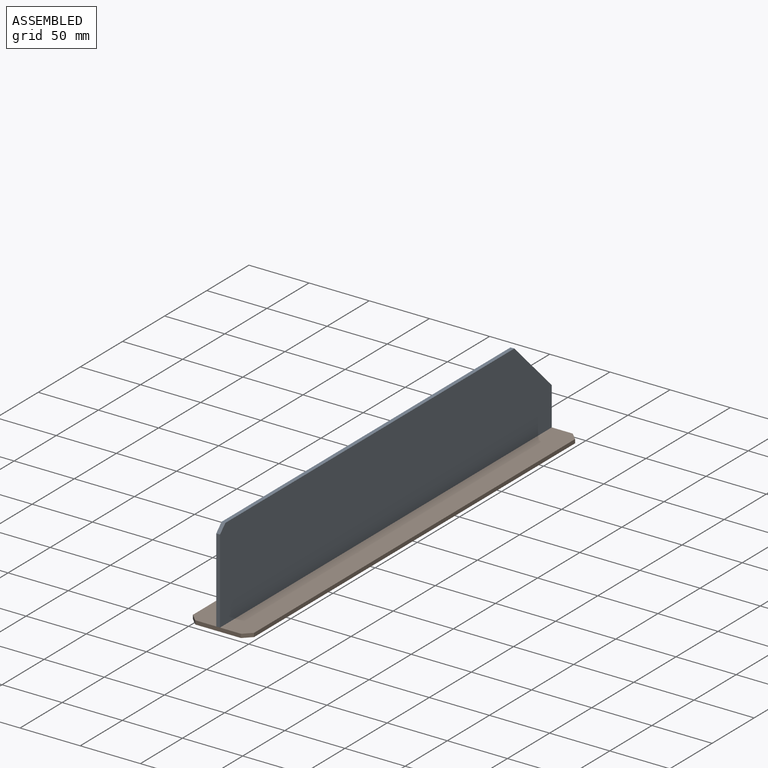
[diagram: assembled view]
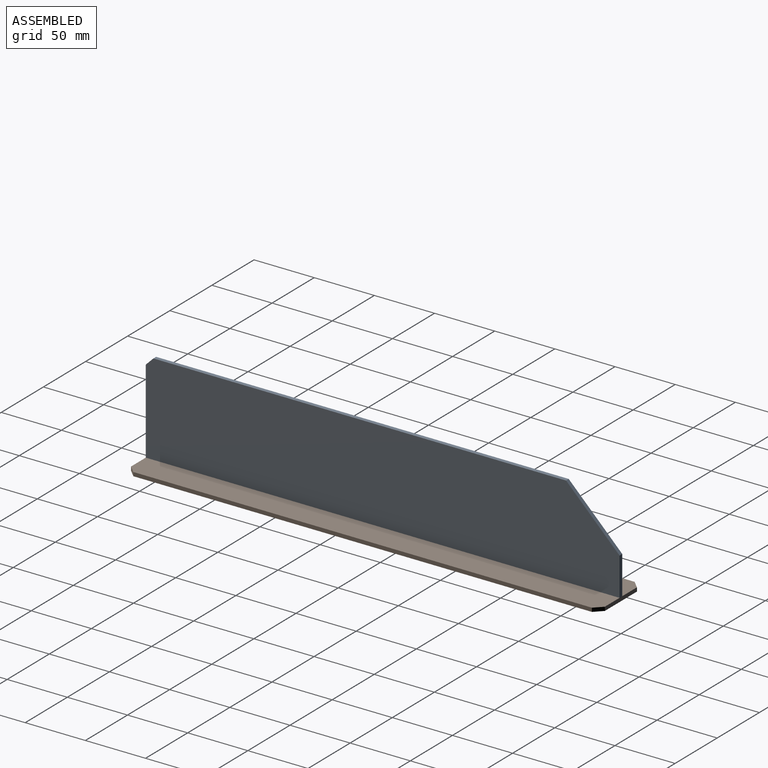
[diagram: assembled view, second angle]
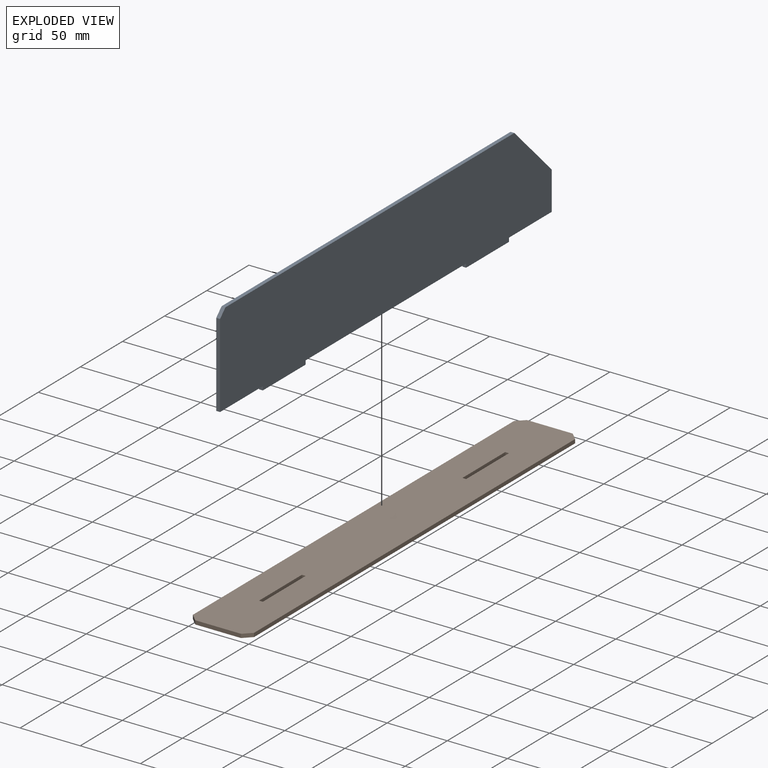
[diagram: exploded view]
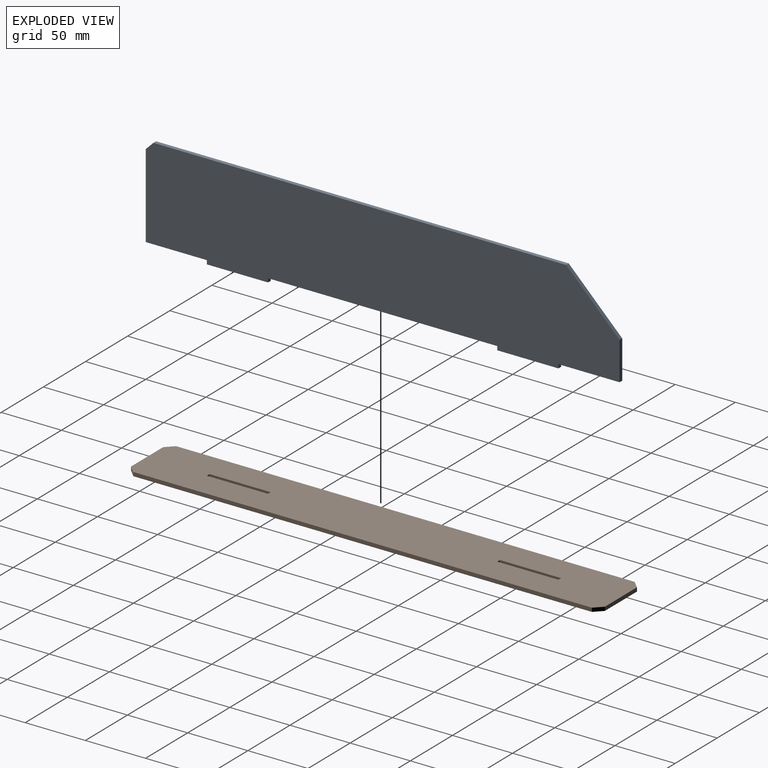
[diagram: exploded view, second angle]
ASSEMBLY  parts=2 mates=3
PART A: 16 faces, bbox 3.2x393.7x79.4 mm
  f0: plane 50.8x3.18mm, normal (0,0,-1), area 161.3mm2, adj f4,f6,f7,f12
  f1: plane 190.5x3.18mm, normal (0,0,-1), area 604.8mm2, adj f6,f7,f9,f11
  f2: plane 69.85x3.18mm, normal (0,-1,0), area 221.8mm2, adj f3,f6,f7,f15
  f3: plane 50.8x3.18mm, normal (0,0,-1), area 161.3mm2, adj f2,f6,f7,f8
  f4: plane 31.75x3.18mm, normal (0,1,0), area 100.8mm2, adj f0,f6,f7,f14
  f5: plane 342.9x3.18mm, normal (0,0,1), area 1088.7mm2, adj f6,f7,f14,f15
  f6: plane 393.7x79.38mm, normal (1,0,0), area 29314.5mm2, adj f0,f1,f2,f3,f4,f5,f8,f9
  f7: plane 393.7x79.38mm, normal (-1,0,0), area 29314.5mm2, adj f0,f1,f2,f3,f4,f5,f8,f9
  f8: plane 3.18x3.18mm, normal (0,-1,0), area 10.1mm2, adj f3,f6,f7,f10
  f9: plane 3.18x3.18mm, normal (0,1,0), area 10.1mm2, adj f1,f6,f7,f10
  f10: plane 50.8x3.18mm, normal (0,0,-1), area 161.3mm2, adj f6,f7,f8,f9
  f11: plane 3.18x3.18mm, normal (0,-1,0), area 10.1mm2, adj f1,f6,f7,f13
  f12: plane 3.18x3.18mm, normal (0,1,0), area 10.1mm2, adj f0,f6,f7,f13
  f13: plane 50.8x3.18mm, normal (0,0,-1), area 161.3mm2, adj f6,f7,f11,f12
  f14: plane 44.45x44.45mm, normal (0,0.71,0.71), area 199.6mm2, adj f4,f5,f6,f7
  f15: plane 6.35x6.35mm, normal (0,-0.71,0.71), area 28.5mm2, adj f2,f5,f6,f7
PART B: 18 faces, bbox 50.8x393.7x3.2 mm
  f0: plane 381x3.18mm, normal (1,0,0), area 1209.7mm2, adj f4,f5,f14,f16
  f1: plane 38.1x3.18mm, normal (0,1,0), area 121mm2, adj f4,f5,f14,f15
  f2: plane 381x3.18mm, normal (-1,0,0), area 1209.7mm2, adj f4,f5,f15,f17
  f3: plane 38.1x3.18mm, normal (0,-1,0), area 121mm2, adj f4,f5,f16,f17
  f4: plane 393.7x50.8mm, normal (0,0,1), area 19596.7mm2, adj f0,f1,f2,f3,f6,f7,f8,f9
  f5: plane 393.7x50.8mm, normal (0,0,-1), area 19596.7mm2, adj f0,f1,f2,f3,f6,f7,f8,f9
  f6: plane 3.18x3.18mm, normal (0,-1,0), area 10.1mm2, adj f4,f5,f7,f8
  f7: plane 50.8x3.18mm, normal (-1,0,0), area 161.3mm2, adj f4,f5,f6,f9
  f8: plane 50.8x3.18mm, normal (1,0,0), area 161.3mm2, adj f4,f5,f6,f9
  f9: plane 3.18x3.18mm, normal (0,1,0), area 10.1mm2, adj f4,f5,f7,f8
  f10: plane 3.18x3.18mm, normal (0,-1,0), area 10.1mm2, adj f4,f5,f11,f12
  f11: plane 50.8x3.18mm, normal (-1,0,0), area 161.3mm2, adj f4,f5,f10,f13
  f12: plane 50.8x3.18mm, normal (1,0,0), area 161.3mm2, adj f4,f5,f10,f13
  f13: plane 3.18x3.18mm, normal (0,1,0), area 10.1mm2, adj f4,f5,f11,f12
  f14: plane 6.35x6.35mm, normal (0.71,0.71,0), area 28.5mm2, adj f0,f1,f4,f5
  f15: plane 6.35x6.35mm, normal (-0.71,0.71,0), area 28.5mm2, adj f1,f2,f4,f5
  f16: plane 6.35x6.35mm, normal (0.71,-0.71,0), area 28.5mm2, adj f0,f3,f4,f5
  f17: plane 6.35x6.35mm, normal (-0.71,-0.71,0), area 28.5mm2, adj f2,f3,f4,f5
PLACE A t=(351.91,-91.29,108.67)mm
PLACE B t=(378.89,302.41,105.5)mm
MATE planar A.f13 <-> B.f5  axis (0,0,-1) through (353.49,226.21,105.5)mm
MATE planar A.f7 <-> B.f12  axis (-1,0,0) through (351.91,99.56,145.53)mm
MATE planar A.f4 <-> B.f1  axis (0,1,0) through (353.49,302.41,124.55)mm
